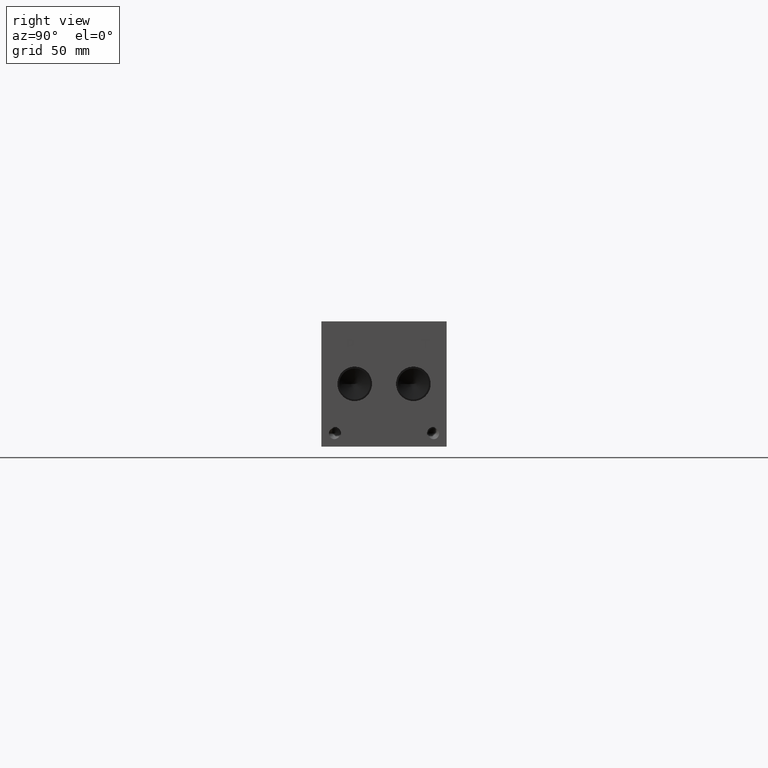
[diagram: clean part render]
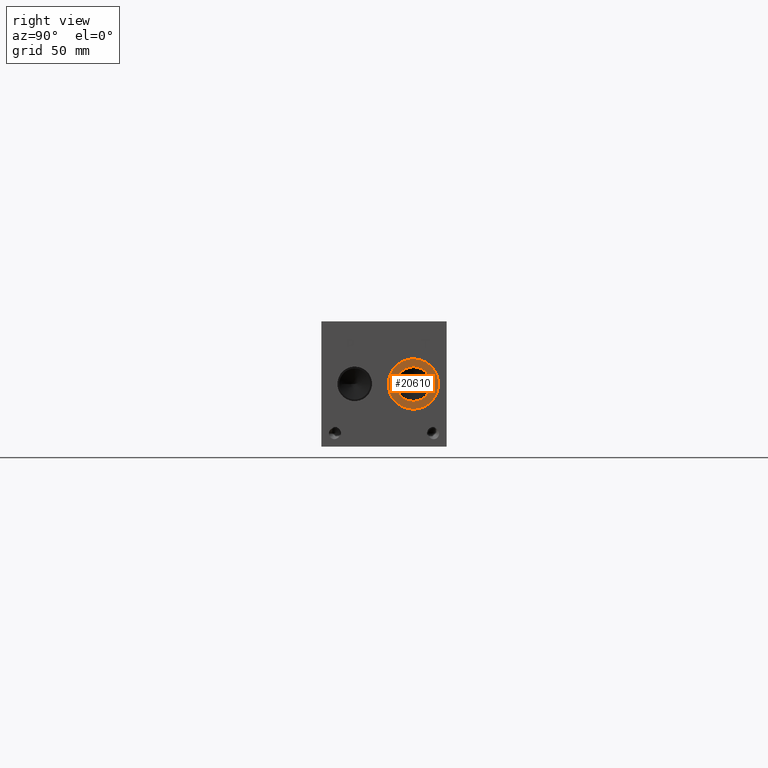
[diagram: same view with one face highlighted and labeled with its STEP entity id]
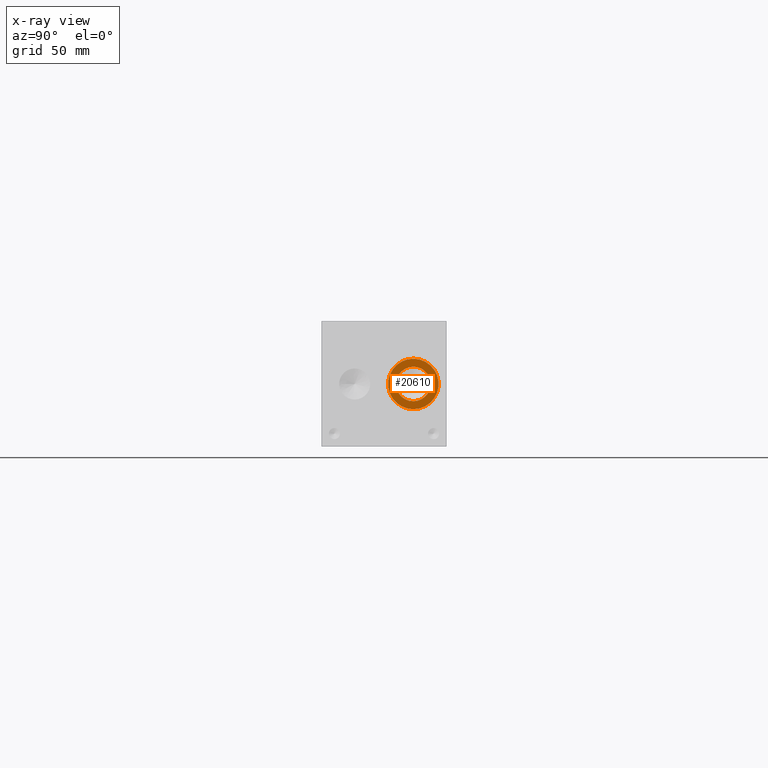
[diagram: x-ray of the same camera — body ghosted, the highlighted face saturated]
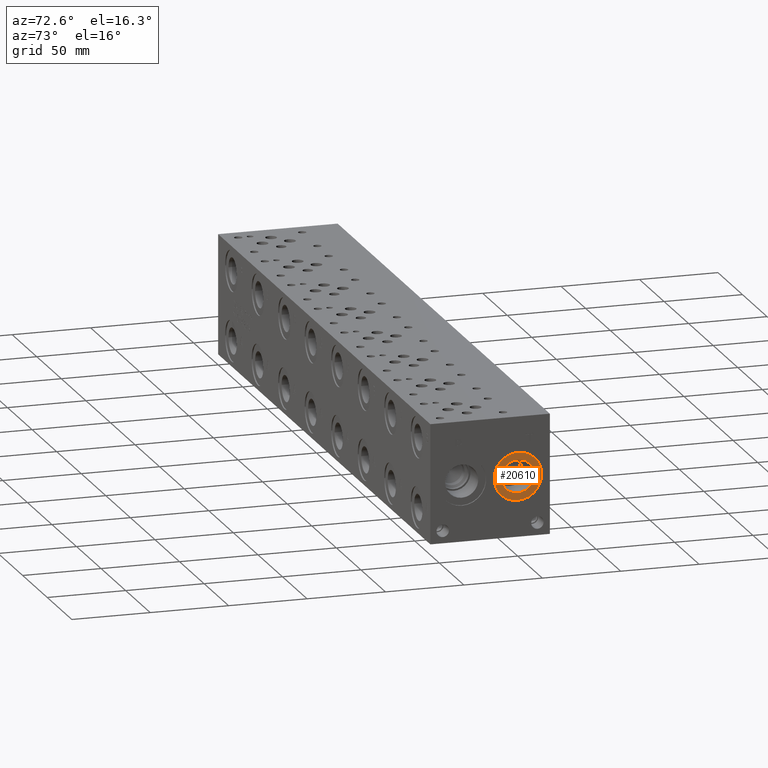
[diagram: same view with one face highlighted and labeled with its STEP entity id]
A machine part, right view. The second image highlights one B-rep face of the part: STEP entity #20610.
The next image is the same camera in x-ray: the body ghosted, the highlighted face saturated — about 0% of this face is hidden behind the body in this view.
A second angle (auxiliary view) of the same face is appended — the face is thin or edge-on in the first view.
In plain terms, the highlighted planar face has unit normal (-1, 0, 0).
Its self-contained STEP definition (entity closure, byte-faithful):
#845=CIRCLE('',#21754,15.3416);
#846=CIRCLE('',#21755,15.3416);
#847=CIRCLE('',#21757,10.5283);
#848=CIRCLE('',#21758,10.5283);
#1890=FACE_BOUND('',#4065,.T.);
#2844=FACE_OUTER_BOUND('',#4064,.T.);
#4064=EDGE_LOOP('',(#17276,#17277));
#4065=EDGE_LOOP('',(#17278,#17279));
#9375=VERTEX_POINT('',#35023);
#9376=VERTEX_POINT('',#35025);
#9377=VERTEX_POINT('',#35029);
#9378=VERTEX_POINT('',#35030);
#12148=EDGE_CURVE('',#9375,#9376,#845,.T.);
#12149=EDGE_CURVE('',#9376,#9375,#846,.T.);
#12150=EDGE_CURVE('',#9377,#9378,#847,.T.);
#12151=EDGE_CURVE('',#9378,#9377,#848,.T.);
#17276=ORIENTED_EDGE('',*,*,#12149,.F.);
#17277=ORIENTED_EDGE('',*,*,#12148,.F.);
#17278=ORIENTED_EDGE('',*,*,#12150,.T.);
#17279=ORIENTED_EDGE('',*,*,#12151,.T.);
#19063=PLANE('',#21756);
#20610=ADVANCED_FACE('',(#2844,#1890),#19063,.F.);
#21754=AXIS2_PLACEMENT_3D('',#35026,#25708,#25709);
#21755=AXIS2_PLACEMENT_3D('',#35027,#25710,#25711);
#21756=AXIS2_PLACEMENT_3D('',#35028,#25712,#25713);
#21757=AXIS2_PLACEMENT_3D('',#35031,#25714,#25715);
#21758=AXIS2_PLACEMENT_3D('',#35032,#25716,#25717);
#25708=DIRECTION('center_axis',(-1.,0.,0.));
#25709=DIRECTION('ref_axis',(0.,0.,1.));
#25710=DIRECTION('center_axis',(-1.,0.,0.));
#25711=DIRECTION('ref_axis',(0.,0.,1.));
#25712=DIRECTION('center_axis',(-1.,0.,0.));
#25713=DIRECTION('ref_axis',(0.,0.,1.));
#25714=DIRECTION('center_axis',(-1.,0.,0.));
#25715=DIRECTION('ref_axis',(0.,0.,1.));
#25716=DIRECTION('center_axis',(-1.,0.,0.));
#25717=DIRECTION('ref_axis',(0.,0.,1.));
#35023=CARTESIAN_POINT('',(431.0126,55.9562,53.4416));
#35025=CARTESIAN_POINT('',(431.0126,55.9562,22.7584));
#35026=CARTESIAN_POINT('Origin',(431.0126,55.9562,38.1));
#35027=CARTESIAN_POINT('Origin',(431.0126,55.9562,38.1));
#35028=CARTESIAN_POINT('Origin',(431.0126,55.9562,27.5717));
#35029=CARTESIAN_POINT('',(431.0126,55.9562,27.5717));
#35030=CARTESIAN_POINT('',(431.0126,55.9562,48.6283));
#35031=CARTESIAN_POINT('Origin',(431.0126,55.9562,38.1));
#35032=CARTESIAN_POINT('Origin',(431.0126,55.9562,38.1));